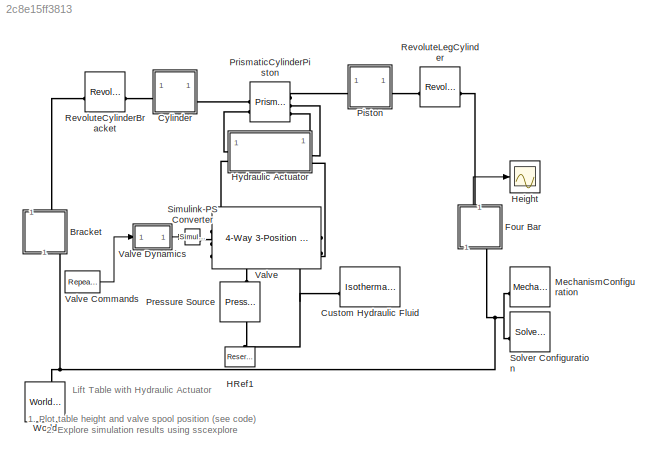
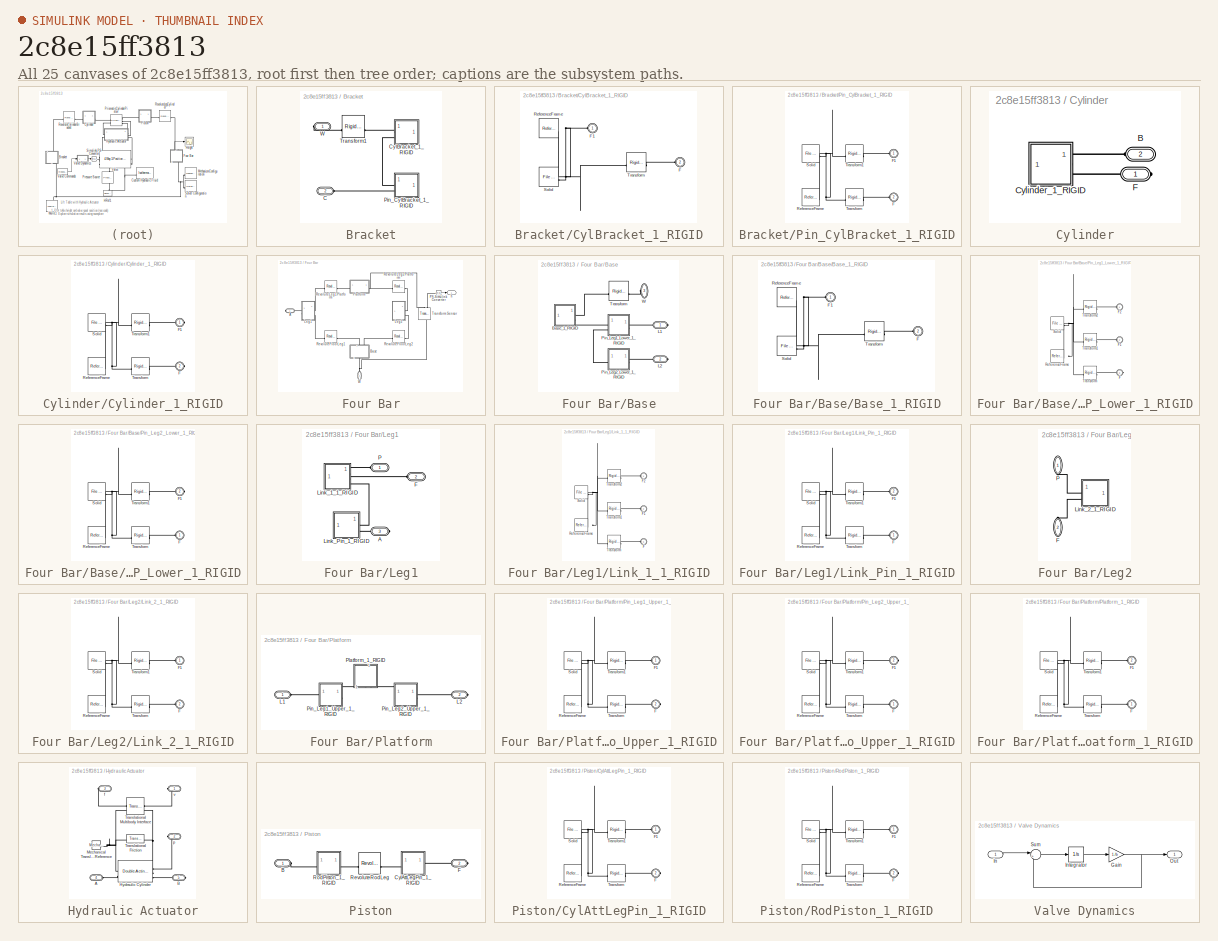
[diagram: thumbnail index - all 25 canvases of the model, root first then tree order]
MODEL slx_2c8e15ff3813
KIND model
CONFIG AbsTol = 1e-3
CONFIG PostLoadFcn = pst_rOut = 15;\nrod_rOut = 5;\nstroke = 0.7;
CONFIG SolverName = VariableStepAuto
CONFIG StopTime = 30
WORKSPACE source: external: MATLAB File  (data not in archive)
BLOCK [SubSystem] Bracket
  NameLocation = right
BLOCK [PMIOPort] Bracket/C
  Port = 2
  Side = Left
BLOCK [SubSystem] Bracket/CylBracket_1_RIGID
BLOCK [PMIOPort] Bracket/CylBracket_1_RIGID/F
  Port = 2
  Side = Left
BLOCK [PMIOPort] Bracket/CylBracket_1_RIGID/F1
  Side = Left
BLOCK [Reference] Bracket/CylBracket_1_RIGID/ReferenceFrame  REF=sm_lib/Frames and
Transforms/Reference
Frame
  SourceBlock = sm_lib/Frames and\nTransforms/Reference\nFrame
  SourceType = Reference\nFrame
BLOCK [Reference] Bracket/CylBracket_1_RIGID/Solid  REF=sm_lib/Body Elements/File Solid
  SourceBlock = sm_lib/Body Elements/File Solid
  SourceType = File Solid
BLOCK [Reference] Bracket/CylBracket_1_RIGID/Transform  REF=sm_lib/Frames and
Transforms/Rigid
Transform
  SourceBlock = sm_lib/Frames and\nTransforms/Rigid\nTransform
  SourceType = Rigid\nTransform
BLOCK [SubSystem] Bracket/Pin_CylBracket_1_RIGID
BLOCK [PMIOPort] Bracket/Pin_CylBracket_1_RIGID/F
  Port = 2
  Side = Left
BLOCK [PMIOPort] Bracket/Pin_CylBracket_1_RIGID/F1
  Side = Left
BLOCK [Reference] Bracket/Pin_CylBracket_1_RIGID/ReferenceFrame  REF=sm_lib/Frames and
Transforms/Reference
Frame
  SourceBlock = sm_lib/Frames and\nTransforms/Reference\nFrame
  SourceType = Reference\nFrame
BLOCK [Reference] Bracket/Pin_CylBracket_1_RIGID/Solid  REF=sm_lib/Body Elements/File Solid
  SourceBlock = sm_lib/Body Elements/File Solid
  SourceType = File Solid
BLOCK [Reference] Bracket/Pin_CylBracket_1_RIGID/Transform  REF=sm_lib/Frames and
Transforms/Rigid
Transform
  SourceBlock = sm_lib/Frames and\nTransforms/Rigid\nTransform
  SourceType = Rigid\nTransform
BLOCK [Reference] Bracket/Pin_CylBracket_1_RIGID/Transform1  REF=sm_lib/Frames and
Transforms/Rigid
Transform
  SourceBlock = sm_lib/Frames and\nTransforms/Rigid\nTransform
  SourceType = Rigid\nTransform
BLOCK [Reference] Bracket/Transform1  REF=sm_lib/Frames and
Transforms/Rigid
Transform
  NameLocation = top
  SourceBlock = sm_lib/Frames and\nTransforms/Rigid\nTransform
  SourceType = Rigid\nTransform
BLOCK [PMIOPort] Bracket/W
  NameLocation = top
  Side = Right
BLOCK [Reference] Custom Hydraulic Fluid  REF=fl_lib/Isothermal Liquid/Utilities/Isothermal Liquid
Properties (IL)
  LibrarySourceBlock = fl_lib/Hydraulic/Hydraulic Utilities/Custom Hydraulic\nFluid
  SourceBlock = fl_lib/Isothermal Liquid/Utilities/Isothermal Liquid\nProperties (IL)
  SourceType = Isothermal Liquid\nProperties (IL)
BLOCK [SubSystem] Cylinder
BLOCK [PMIOPort] Cylinder/B
  NameLocation = top
  Port = 2
  Side = Left
BLOCK [SubSystem] Cylinder/Cylinder_1_RIGID
BLOCK [PMIOPort] Cylinder/Cylinder_1_RIGID/F
  Port = 2
  Side = Right
BLOCK [PMIOPort] Cylinder/Cylinder_1_RIGID/F1
  Side = Right
BLOCK [Reference] Cylinder/Cylinder_1_RIGID/ReferenceFrame  REF=sm_lib/Frames and
Transforms/Reference
Frame
  SourceBlock = sm_lib/Frames and\nTransforms/Reference\nFrame
  SourceType = Reference\nFrame
BLOCK [Reference] Cylinder/Cylinder_1_RIGID/Solid  REF=sm_lib/Body Elements/File Solid
  SourceBlock = sm_lib/Body Elements/File Solid
  SourceType = File Solid
BLOCK [Reference] Cylinder/Cylinder_1_RIGID/Transform  REF=sm_lib/Frames and
Transforms/Rigid
Transform
  SourceBlock = sm_lib/Frames and\nTransforms/Rigid\nTransform
  SourceType = Rigid\nTransform
BLOCK [Reference] Cylinder/Cylinder_1_RIGID/Transform1  REF=sm_lib/Frames and
Transforms/Rigid
Transform
  SourceBlock = sm_lib/Frames and\nTransforms/Rigid\nTransform
  SourceType = Rigid\nTransform
BLOCK [PMIOPort] Cylinder/F
  Side = Right
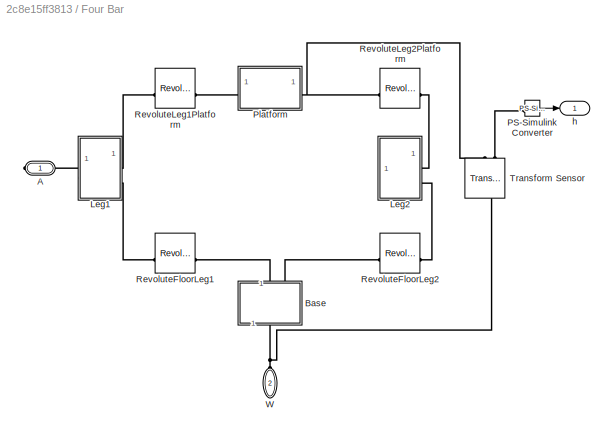
BLOCK [SubSystem] Four Bar
  NameLocation = left
BLOCK [PMIOPort] Four Bar/A
  Side = Right
BLOCK [SubSystem] Four Bar/Base
  NameLocation = right
BLOCK [SubSystem] Four Bar/Base/Base_1_RIGID
BLOCK [PMIOPort] Four Bar/Base/Base_1_RIGID/F
  Port = 2
  Side = Left
BLOCK [PMIOPort] Four Bar/Base/Base_1_RIGID/F1
  Side = Left
BLOCK [Reference] Four Bar/Base/Base_1_RIGID/ReferenceFrame  REF=sm_lib/Frames and
Transforms/Reference
Frame
  SourceBlock = sm_lib/Frames and\nTransforms/Reference\nFrame
  SourceType = Reference\nFrame
BLOCK [Reference] Four Bar/Base/Base_1_RIGID/Solid  REF=sm_lib/Body Elements/File Solid
  SourceBlock = sm_lib/Body Elements/File Solid
  SourceType = File Solid
BLOCK [Reference] Four Bar/Base/Base_1_RIGID/Transform  REF=sm_lib/Frames and
Transforms/Rigid
Transform
  SourceBlock = sm_lib/Frames and\nTransforms/Rigid\nTransform
  SourceType = Rigid\nTransform
BLOCK [PMIOPort] Four Bar/Base/L1
  Side = Right
BLOCK [PMIOPort] Four Bar/Base/L2
  Port = 2
  Side = Right
BLOCK [SubSystem] Four Bar/Base/Pin_Leg1_Lower_1_RIGID
BLOCK [PMIOPort] Four Bar/Base/Pin_Leg1_Lower_1_RIGID/F
  Port = 3
  Side = Right
BLOCK [PMIOPort] Four Bar/Base/Pin_Leg1_Lower_1_RIGID/F1
  Port = 2
  Side = Left
BLOCK [PMIOPort] Four Bar/Base/Pin_Leg1_Lower_1_RIGID/F2
  Side = Left
BLOCK [Reference] Four Bar/Base/Pin_Leg1_Lower_1_RIGID/ReferenceFrame  REF=sm_lib/Frames and
Transforms/Reference
Frame
  SourceBlock = sm_lib/Frames and\nTransforms/Reference\nFrame
  SourceType = Reference\nFrame
BLOCK [Reference] Four Bar/Base/Pin_Leg1_Lower_1_RIGID/Solid  REF=sm_lib/Body Elements/File Solid
  SourceBlock = sm_lib/Body Elements/File Solid
  SourceType = File Solid
BLOCK [Reference] Four Bar/Base/Pin_Leg1_Lower_1_RIGID/Transform  REF=sm_lib/Frames and
Transforms/Rigid
Transform
  SourceBlock = sm_lib/Frames and\nTransforms/Rigid\nTransform
  SourceType = Rigid\nTransform
BLOCK [Reference] Four Bar/Base/Pin_Leg1_Lower_1_RIGID/Transform1  REF=sm_lib/Frames and
Transforms/Rigid
Transform
  SourceBlock = sm_lib/Frames and\nTransforms/Rigid\nTransform
  SourceType = Rigid\nTransform
BLOCK [Reference] Four Bar/Base/Pin_Leg1_Lower_1_RIGID/Transform2  REF=sm_lib/Frames and
Transforms/Rigid
Transform
  SourceBlock = sm_lib/Frames and\nTransforms/Rigid\nTransform
  SourceType = Rigid\nTransform
BLOCK [SubSystem] Four Bar/Base/Pin_Leg2_Lower_1_RIGID
BLOCK [PMIOPort] Four Bar/Base/Pin_Leg2_Lower_1_RIGID/F
  Side = Left
BLOCK [PMIOPort] Four Bar/Base/Pin_Leg2_Lower_1_RIGID/F1
  Port = 2
  Side = Right
BLOCK [Reference] Four Bar/Base/Pin_Leg2_Lower_1_RIGID/ReferenceFrame  REF=sm_lib/Frames and
Transforms/Reference
Frame
  SourceBlock = sm_lib/Frames and\nTransforms/Reference\nFrame
  SourceType = Reference\nFrame
BLOCK [Reference] Four Bar/Base/Pin_Leg2_Lower_1_RIGID/Solid  REF=sm_lib/Body Elements/File Solid
  SourceBlock = sm_lib/Body Elements/File Solid
  SourceType = File Solid
BLOCK [Reference] Four Bar/Base/Pin_Leg2_Lower_1_RIGID/Transform  REF=sm_lib/Frames and
Transforms/Rigid
Transform
  SourceBlock = sm_lib/Frames and\nTransforms/Rigid\nTransform
  SourceType = Rigid\nTransform
BLOCK [Reference] Four Bar/Base/Pin_Leg2_Lower_1_RIGID/Transform1  REF=sm_lib/Frames and
Transforms/Rigid
Transform
  SourceBlock = sm_lib/Frames and\nTransforms/Rigid\nTransform
  SourceType = Rigid\nTransform
BLOCK [Reference] Four Bar/Base/Transform  REF=sm_lib/Frames and
Transforms/Rigid
Transform
  SourceBlock = sm_lib/Frames and\nTransforms/Rigid\nTransform
  SourceType = Rigid\nTransform
BLOCK [PMIOPort] Four Bar/Base/W
  NameLocation = top
  Port = 3
  Side = Left
BLOCK [SubSystem] Four Bar/Leg1
BLOCK [PMIOPort] Four Bar/Leg1/A
  Port = 3
  Side = Right
BLOCK [PMIOPort] Four Bar/Leg1/F
  NameLocation = top
  Port = 2
  Side = Left
BLOCK [SubSystem] Four Bar/Leg1/Link_1_1_RIGID
BLOCK [PMIOPort] Four Bar/Leg1/Link_1_1_RIGID/F
  Port = 3
  Side = Left
BLOCK [PMIOPort] Four Bar/Leg1/Link_1_1_RIGID/F1
  Port = 2
  Side = Left
BLOCK [PMIOPort] Four Bar/Leg1/Link_1_1_RIGID/F2
  Side = Left
BLOCK [Reference] Four Bar/Leg1/Link_1_1_RIGID/ReferenceFrame  REF=sm_lib/Frames and
Transforms/Reference
Frame
  SourceBlock = sm_lib/Frames and\nTransforms/Reference\nFrame
  SourceType = Reference\nFrame
BLOCK [Reference] Four Bar/Leg1/Link_1_1_RIGID/Solid  REF=sm_lib/Body Elements/File Solid
  SourceBlock = sm_lib/Body Elements/File Solid
  SourceType = File Solid
BLOCK [Reference] Four Bar/Leg1/Link_1_1_RIGID/Transform  REF=sm_lib/Frames and
Transforms/Rigid
Transform
  SourceBlock = sm_lib/Frames and\nTransforms/Rigid\nTransform
  SourceType = Rigid\nTransform
BLOCK [Reference] Four Bar/Leg1/Link_1_1_RIGID/Transform1  REF=sm_lib/Frames and
Transforms/Rigid
Transform
  SourceBlock = sm_lib/Frames and\nTransforms/Rigid\nTransform
  SourceType = Rigid\nTransform
BLOCK [Reference] Four Bar/Leg1/Link_1_1_RIGID/Transform2  REF=sm_lib/Frames and
Transforms/Rigid
Transform
  SourceBlock = sm_lib/Frames and\nTransforms/Rigid\nTransform
  SourceType = Rigid\nTransform
BLOCK [SubSystem] Four Bar/Leg1/Link_Pin_1_RIGID
  NameLocation = top
BLOCK [PMIOPort] Four Bar/Leg1/Link_Pin_1_RIGID/F
  Side = Left
BLOCK [PMIOPort] Four Bar/Leg1/Link_Pin_1_RIGID/F1
  Port = 2
  Side = Left
BLOCK [Reference] Four Bar/Leg1/Link_Pin_1_RIGID/ReferenceFrame  REF=sm_lib/Frames and
Transforms/Reference
Frame
  SourceBlock = sm_lib/Frames and\nTransforms/Reference\nFrame
  SourceType = Reference\nFrame
BLOCK [Reference] Four Bar/Leg1/Link_Pin_1_RIGID/Solid  REF=sm_lib/Body Elements/File Solid
  SourceBlock = sm_lib/Body Elements/File Solid
  SourceType = File Solid
BLOCK [Reference] Four Bar/Leg1/Link_Pin_1_RIGID/Transform  REF=sm_lib/Frames and
Transforms/Rigid
Transform
  SourceBlock = sm_lib/Frames and\nTransforms/Rigid\nTransform
  SourceType = Rigid\nTransform
BLOCK [Reference] Four Bar/Leg1/Link_Pin_1_RIGID/Transform1  REF=sm_lib/Frames and
Transforms/Rigid
Transform
  SourceBlock = sm_lib/Frames and\nTransforms/Rigid\nTransform
  SourceType = Rigid\nTransform
BLOCK [PMIOPort] Four Bar/Leg1/P
  NameLocation = top
  Side = Left
BLOCK [SubSystem] Four Bar/Leg2
BLOCK [PMIOPort] Four Bar/Leg2/F
  NameLocation = right
  Port = 2
  Side = Left
BLOCK [SubSystem] Four Bar/Leg2/Link_2_1_RIGID
BLOCK [PMIOPort] Four Bar/Leg2/Link_2_1_RIGID/F
  Port = 2
  Side = Left
BLOCK [PMIOPort] Four Bar/Leg2/Link_2_1_RIGID/F1
  Side = Left
BLOCK [Reference] Four Bar/Leg2/Link_2_1_RIGID/ReferenceFrame  REF=sm_lib/Frames and
Transforms/Reference
Frame
  SourceBlock = sm_lib/Frames and\nTransforms/Reference\nFrame
  SourceType = Reference\nFrame
BLOCK [Reference] Four Bar/Leg2/Link_2_1_RIGID/Solid  REF=sm_lib/Body Elements/File Solid
  SourceBlock = sm_lib/Body Elements/File Solid
  SourceType = File Solid
BLOCK [Reference] Four Bar/Leg2/Link_2_1_RIGID/Transform  REF=sm_lib/Frames and
Transforms/Rigid
Transform
  SourceBlock = sm_lib/Frames and\nTransforms/Rigid\nTransform
  SourceType = Rigid\nTransform
BLOCK [Reference] Four Bar/Leg2/Link_2_1_RIGID/Transform1  REF=sm_lib/Frames and
Transforms/Rigid
Transform
  SourceBlock = sm_lib/Frames and\nTransforms/Rigid\nTransform
  SourceType = Rigid\nTransform
BLOCK [PMIOPort] Four Bar/Leg2/P
  NameLocation = right
  Side = Left
BLOCK [Reference] Four Bar/PS-Simulink Converter  REF=nesl_utility/PS-Simulink
Converter
  NameLocation = top
  SourceBlock = nesl_utility/PS-Simulink\nConverter
  SourceType = PS-Simulink\nConverter
BLOCK [SubSystem] Four Bar/Platform
BLOCK [PMIOPort] Four Bar/Platform/L1
  Side = Left
BLOCK [PMIOPort] Four Bar/Platform/L2
  Port = 2
  Side = Right
BLOCK [SubSystem] Four Bar/Platform/Pin_Leg1_Upper_1_RIGID
BLOCK [PMIOPort] Four Bar/Platform/Pin_Leg1_Upper_1_RIGID/F
  Port = 2
  Side = Right
BLOCK [PMIOPort] Four Bar/Platform/Pin_Leg1_Upper_1_RIGID/F1
  Side = Left
BLOCK [Reference] Four Bar/Platform/Pin_Leg1_Upper_1_RIGID/ReferenceFrame  REF=sm_lib/Frames and
Transforms/Reference
Frame
  SourceBlock = sm_lib/Frames and\nTransforms/Reference\nFrame
  SourceType = Reference\nFrame
BLOCK [Reference] Four Bar/Platform/Pin_Leg1_Upper_1_RIGID/Solid  REF=sm_lib/Body Elements/File Solid
  SourceBlock = sm_lib/Body Elements/File Solid
  SourceType = File Solid
BLOCK [Reference] Four Bar/Platform/Pin_Leg1_Upper_1_RIGID/Transform  REF=sm_lib/Frames and
Transforms/Rigid
Transform
  SourceBlock = sm_lib/Frames and\nTransforms/Rigid\nTransform
  SourceType = Rigid\nTransform
BLOCK [Reference] Four Bar/Platform/Pin_Leg1_Upper_1_RIGID/Transform1  REF=sm_lib/Frames and
Transforms/Rigid
Transform
  SourceBlock = sm_lib/Frames and\nTransforms/Rigid\nTransform
  SourceType = Rigid\nTransform
BLOCK [SubSystem] Four Bar/Platform/Pin_Leg2_Upper_1_RIGID
BLOCK [PMIOPort] Four Bar/Platform/Pin_Leg2_Upper_1_RIGID/F
  Side = Left
BLOCK [PMIOPort] Four Bar/Platform/Pin_Leg2_Upper_1_RIGID/F1
  Port = 2
  Side = Right
BLOCK [Reference] Four Bar/Platform/Pin_Leg2_Upper_1_RIGID/ReferenceFrame  REF=sm_lib/Frames and
Transforms/Reference
Frame
  SourceBlock = sm_lib/Frames and\nTransforms/Reference\nFrame
  SourceType = Reference\nFrame
BLOCK [Reference] Four Bar/Platform/Pin_Leg2_Upper_1_RIGID/Solid  REF=sm_lib/Body Elements/File Solid
  SourceBlock = sm_lib/Body Elements/File Solid
  SourceType = File Solid
BLOCK [Reference] Four Bar/Platform/Pin_Leg2_Upper_1_RIGID/Transform  REF=sm_lib/Frames and
Transforms/Rigid
Transform
  SourceBlock = sm_lib/Frames and\nTransforms/Rigid\nTransform
  SourceType = Rigid\nTransform
BLOCK [Reference] Four Bar/Platform/Pin_Leg2_Upper_1_RIGID/Transform1  REF=sm_lib/Frames and
Transforms/Rigid
Transform
  SourceBlock = sm_lib/Frames and\nTransforms/Rigid\nTransform
  SourceType = Rigid\nTransform
BLOCK [SubSystem] Four Bar/Platform/Platform_1_RIGID
  NameLocation = right
BLOCK [PMIOPort] Four Bar/Platform/Platform_1_RIGID/F
  Side = Left
BLOCK [PMIOPort] Four Bar/Platform/Platform_1_RIGID/F1
  Port = 2
  Side = Left
BLOCK [Reference] Four Bar/Platform/Platform_1_RIGID/ReferenceFrame  REF=sm_lib/Frames and
Transforms/Reference
Frame
  SourceBlock = sm_lib/Frames and\nTransforms/Reference\nFrame
  SourceType = Reference\nFrame
BLOCK [Reference] Four Bar/Platform/Platform_1_RIGID/Solid  REF=sm_lib/Body Elements/File Solid
  SourceBlock = sm_lib/Body Elements/File Solid
  SourceType = File Solid
BLOCK [Reference] Four Bar/Platform/Platform_1_RIGID/Transform  REF=sm_lib/Frames and
Transforms/Rigid
Transform
  SourceBlock = sm_lib/Frames and\nTransforms/Rigid\nTransform
  SourceType = Rigid\nTransform
BLOCK [Reference] Four Bar/Platform/Platform_1_RIGID/Transform1  REF=sm_lib/Frames and
Transforms/Rigid
Transform
  SourceBlock = sm_lib/Frames and\nTransforms/Rigid\nTransform
  SourceType = Rigid\nTransform
BLOCK [Reference] Four Bar/RevoluteFloorLeg1  REF=sm_lib/Joints/Revolute Joint
  SourceBlock = sm_lib/Joints/Revolute Joint
  SourceType = Revolute Joint
BLOCK [Reference] Four Bar/RevoluteFloorLeg2  REF=sm_lib/Joints/Revolute Joint
  SourceBlock = sm_lib/Joints/Revolute Joint
  SourceType = Revolute Joint
BLOCK [Reference] Four Bar/RevoluteLeg1Platform  REF=sm_lib/Joints/Revolute Joint
  NameLocation = top
  SourceBlock = sm_lib/Joints/Revolute Joint
  SourceType = Revolute Joint
BLOCK [Reference] Four Bar/RevoluteLeg2Platform  REF=sm_lib/Joints/Revolute Joint
  NameLocation = top
  SourceBlock = sm_lib/Joints/Revolute Joint
  SourceType = Revolute Joint
BLOCK [Reference] Four Bar/Transform Sensor  REF=sm_lib/Frames and
Transforms/Transform
Sensor
  NameLocation = right
  SourceBlock = sm_lib/Frames and\nTransforms/Transform\nSensor
  SourceType = Transform\nSensor
BLOCK [PMIOPort] Four Bar/W
  NameLocation = right
  Port = 2
  Side = Left
BLOCK [Outport] Four Bar/h
  VectorParamsAs1DForOutWhenUnconnected = off
BLOCK [Reference] HRef1  REF=fl_lib/Isothermal Liquid/Elements/Reservoir (IL)
  LibrarySourceBlock = fl_lib/Hydraulic/Hydraulic Elements/Hydraulic Reference
  NameLocation = right
  SourceBlock = fl_lib/Isothermal Liquid/Elements/Reservoir (IL)
  SourceType = Reservoir (IL)
  Tag = Factory Generic
BLOCK [Scope] Height
  ActiveDisplayYMaximum = 1.118
  ActiveDisplayYMinimum = -0.06196
  DataLoggingDecimateData = on
  DataLoggingDecimation = 1
  DataLoggingSaveFormat = Array
  Floating = off
  GraphicalSettings = {"GraphicalSettings":{"LegacySettings":true,"Style":{"Style":{"AxesColor":"[0 0 0]","ChannelNames":[""],"ColorOrder":"[1 1 0.0666666666666667;0.0745098039215686 0.623529411764706 1;1 0.411764705882353 0.16078431372549;0.392156862745098 0.831372549019608 0.0745098039215686;0.717647058823529 0.274509803921569 1;0.0588235294117647 1 1;1 0.0745098039215686 0.650980392156863]","CurrentConfiguration":"e...<+343ch>
  MultipleDisplayCache = [{"MaxYLimMag":1.118,"MaxYLimReal":1.118,"MinYLimMag":0,"MinYLimReal":-0.06196,"PlotAsMagnitudePhase":false,"ShowGrid":true,"ShowLegend":false,"Title":"%<SignalLabel>","YLabel":""}]
  NumInputPorts = 1
  WasSavedAsWebScope = on
  WindowPosition = [668 358 560 420]
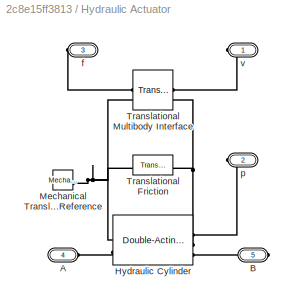
BLOCK [SubSystem] Hydraulic Actuator
BLOCK [PMIOPort] Hydraulic Actuator/A
  Port = 4
  Side = Left
BLOCK [PMIOPort] Hydraulic Actuator/B
  Port = 5
  Side = Right
BLOCK [Reference] Hydraulic Actuator/Hydraulic Cylinder  REF=SimscapeFluids_lib/Isothermal Liquid/Actuators/Double-Acting
Actuator (IL)
  LibrarySourceBlock = sh_lib/Hydraulic Cylinders/Double-Acting\nHydraulic Cylinder
  SourceBlock = SimscapeFluids_lib/Isothermal Liquid/Actuators/Double-Acting\nActuator (IL)
  SourceType = Double-Acting\nActuator (IL)
BLOCK [Reference] Hydraulic Actuator/Mechanical Translational Reference  REF=fl_lib/Mechanical/Translational
Elements/Mechanical
Translational
Reference
  SourceBlock = fl_lib/Mechanical/Translational\nElements/Mechanical\nTranslational\nReference
  SourceType = Mechanical\nTranslational\nReference
BLOCK [Reference] Hydraulic Actuator/Translational Friction  REF=fl_lib/Mechanical/Translational
Elements/Translational
Friction
  SourceBlock = fl_lib/Mechanical/Translational\nElements/Translational\nFriction
  SourceType = Translational\nFriction
BLOCK [Reference] Hydraulic Actuator/Translational Multibody Interface  REF=fl_lib/Mechanical/Multibody Interfaces/Translational
Multibody Interface
  SourceBlock = fl_lib/Mechanical/Multibody Interfaces/Translational\nMultibody Interface
  SourceType = Translational\nMultibody Interface
BLOCK [PMIOPort] Hydraulic Actuator/f
  Port = 3
  Side = Left
BLOCK [PMIOPort] Hydraulic Actuator/p
  Port = 2
  Side = Right
BLOCK [PMIOPort] Hydraulic Actuator/v
  Side = Right
BLOCK [Reference] MechanismConfiguration  REF=sm_lib/Utilities/Mechanism
Configuration
  SourceBlock = sm_lib/Utilities/Mechanism\nConfiguration
  SourceType = Mechanism\nConfiguration
BLOCK [SubSystem] Piston
BLOCK [PMIOPort] Piston/B
  Side = Left
BLOCK [SubSystem] Piston/CylAttLegPin_1_RIGID
BLOCK [PMIOPort] Piston/CylAttLegPin_1_RIGID/F
  Port = 2
  Side = Right
BLOCK [PMIOPort] Piston/CylAttLegPin_1_RIGID/F1
  Side = Left
BLOCK [Reference] Piston/CylAttLegPin_1_RIGID/ReferenceFrame  REF=sm_lib/Frames and
Transforms/Reference
Frame
  SourceBlock = sm_lib/Frames and\nTransforms/Reference\nFrame
  SourceType = Reference\nFrame
BLOCK [Reference] Piston/CylAttLegPin_1_RIGID/Solid  REF=sm_lib/Body Elements/File Solid
  SourceBlock = sm_lib/Body Elements/File Solid
  SourceType = File Solid
BLOCK [Reference] Piston/CylAttLegPin_1_RIGID/Transform  REF=sm_lib/Frames and
Transforms/Rigid
Transform
  SourceBlock = sm_lib/Frames and\nTransforms/Rigid\nTransform
  SourceType = Rigid\nTransform
BLOCK [Reference] Piston/CylAttLegPin_1_RIGID/Transform1  REF=sm_lib/Frames and
Transforms/Rigid
Transform
  SourceBlock = sm_lib/Frames and\nTransforms/Rigid\nTransform
  SourceType = Rigid\nTransform
BLOCK [PMIOPort] Piston/F
  Port = 2
  Side = Right
BLOCK [Reference] Piston/RevoluteRodLeg  REF=sm_lib/Joints/Revolute Joint
  NameLocation = top
  SourceBlock = sm_lib/Joints/Revolute Joint
  SourceType = Revolute Joint
BLOCK [SubSystem] Piston/RodPiston_1_RIGID
BLOCK [PMIOPort] Piston/RodPiston_1_RIGID/F
  Port = 2
  Side = Right
BLOCK [PMIOPort] Piston/RodPiston_1_RIGID/F1
  Side = Left
BLOCK [Reference] Piston/RodPiston_1_RIGID/ReferenceFrame  REF=sm_lib/Frames and
Transforms/Reference
Frame
  SourceBlock = sm_lib/Frames and\nTransforms/Reference\nFrame
  SourceType = Reference\nFrame
BLOCK [Reference] Piston/RodPiston_1_RIGID/Solid  REF=sm_lib/Body Elements/File Solid
  SourceBlock = sm_lib/Body Elements/File Solid
  SourceType = File Solid
BLOCK [Reference] Piston/RodPiston_1_RIGID/Transform  REF=sm_lib/Frames and
Transforms/Rigid
Transform
  SourceBlock = sm_lib/Frames and\nTransforms/Rigid\nTransform
  SourceType = Rigid\nTransform
BLOCK [Reference] Piston/RodPiston_1_RIGID/Transform1  REF=sm_lib/Frames and
Transforms/Rigid
Transform
  SourceBlock = sm_lib/Frames and\nTransforms/Rigid\nTransform
  SourceType = Rigid\nTransform
BLOCK [Reference] Pressure Source  REF=fl_lib/Isothermal Liquid/Sources/Pressure Source (IL)
  LibrarySourceBlock = fl_lib/Hydraulic/Hydraulic Sources/Hydraulic Constant\nPressure Source
  NameLocation = left
  SourceBlock = fl_lib/Isothermal Liquid/Sources/Pressure Source (IL)
  SourceType = Pressure Source (IL)
BLOCK [Reference] PrismaticCylinderPiston  REF=sm_lib/Joints/Prismatic
Joint
  NameLocation = top
  SourceBlock = sm_lib/Joints/Prismatic\nJoint
  SourceType = Prismatic\nJoint
BLOCK [Reference] RevoluteCylinderBracket  REF=sm_lib/Joints/Revolute Joint
  NameLocation = top
  SourceBlock = sm_lib/Joints/Revolute Joint
  SourceType = Revolute Joint
BLOCK [Reference] RevoluteLegCylinder  REF=sm_lib/Joints/Revolute Joint
  NameLocation = top
  SourceBlock = sm_lib/Joints/Revolute Joint
  SourceType = Revolute Joint
BLOCK [Reference] Simulink-PS Converter  REF=nesl_utility/Simulink-PS
Converter
  SourceBlock = nesl_utility/Simulink-PS\nConverter
  SourceType = Simulink-PS\nConverter
BLOCK [Reference] Solver Configuration  REF=nesl_utility/Solver
Configuration
  SourceBlock = nesl_utility/Solver\nConfiguration
  SourceType = Solver\nConfiguration
BLOCK [Reference] Valve  REF=SimscapeFluids_lib/Isothermal Liquid/Valves & Orifices/Directional Control
Valves/4-Way 3-Position
Directional Valve
(IL)
  LibrarySourceBlock = sh_lib/Valves/Directional Valves/4-Way Directional\nValve
  SourceBlock = SimscapeFluids_lib/Isothermal Liquid/Valves & Orifices/Directional Control\nValves/4-Way 3-Position\nDirectional Valve\n(IL)
  SourceType = 4-Way 3-Position\nDirectional Valve\n(IL)
BLOCK [Reference] Valve Commands  REF=simulink/Sources/Repeating
Sequence
Stair
  SourceBlock = simulink/Sources/Repeating\nSequence\nStair
  SourceType = Repeating Sequence Stair
BLOCK [SubSystem] Valve Dynamics
BLOCK [Gain] Valve Dynamics/Gain
  Gain = 1./b
BLOCK [Inport] Valve Dynamics/In
BLOCK [Integrator] Valve Dynamics/Integrator
  InitialCondition = x_initial.*b
BLOCK [Outport] Valve Dynamics/Out
  VectorParamsAs1DForOutWhenUnconnected = off
BLOCK [Sum] Valve Dynamics/Sum
  InputSameDT = on
  Inputs = |+-
  OutDataTypeStr = Inherit: Same as first input
  SaturateOnIntegerOverflow = on
BLOCK [Reference] World  REF=sm_lib/Frames and
Transforms/World Frame
  NameLocation = right
  SourceBlock = sm_lib/Frames and\nTransforms/World Frame
  SourceType = World Frame
ANNOTATION (root): 1. Plot table height and valve spool position ( see code ) 2. Explore simulation results using sscexplore
ANNOTATION (root): Lift Table with Hydraulic Actuator
LINE Four Bar/PS-Simulink Converter:1 -> Four Bar/h:1
LINE Four Bar:1 -> Height:1
LINE Valve Commands:1 -> Valve Dynamics:1
NET Valve Dynamics/Gain:1 -> Valve Dynamics/Out:1, Valve Dynamics/Sum:2
LINE Valve Dynamics/In:1 -> Valve Dynamics/Sum:1
LINE Valve Dynamics/Integrator:1 -> Valve Dynamics/Gain:1
LINE Valve Dynamics/Sum:1 -> Valve Dynamics/Integrator:1
LINE Valve Dynamics:1 -> Simulink-PS Converter:1
PLINE Bracket/C:RConn1 -- Bracket/Pin_CylBracket_1_RIGID:LConn2
PNET net1: Bracket/CylBracket_1_RIGID/F1:RConn1 -- Bracket/CylBracket_1_RIGID/ReferenceFrame:RConn1 -- Bracket/CylBracket_1_RIGID/Solid:RConn1 -- Bracket/CylBracket_1_RIGID/Transform:LConn1
PLINE Bracket/CylBracket_1_RIGID/F:RConn1 -- Bracket/CylBracket_1_RIGID/Transform:RConn1
PLINE Bracket/CylBracket_1_RIGID:LConn1 -- Bracket/Transform1:RConn1
PLINE Bracket/CylBracket_1_RIGID:LConn2 -- Bracket/Pin_CylBracket_1_RIGID:LConn1
PLINE Bracket/Pin_CylBracket_1_RIGID/F1:RConn1 -- Bracket/Pin_CylBracket_1_RIGID/Transform1:RConn1
PLINE Bracket/Pin_CylBracket_1_RIGID/F:RConn1 -- Bracket/Pin_CylBracket_1_RIGID/Transform:RConn1
PNET net2: Bracket/Pin_CylBracket_1_RIGID/ReferenceFrame:RConn1 -- Bracket/Pin_CylBracket_1_RIGID/Solid:RConn1 -- Bracket/Pin_CylBracket_1_RIGID/Transform1:LConn1 -- Bracket/Pin_CylBracket_1_RIGID/Transform:LConn1
PLINE Bracket/Transform1:LConn1 -- Bracket/W:RConn1
PLINE Bracket:LConn1 -- RevoluteCylinderBracket:RConn1
PNET net3: Bracket:RConn1 -- Four Bar:LConn1 -- MechanismConfiguration:RConn1 -- Solver Configuration:RConn1 -- World:RConn1
PNET net4: Custom Hydraulic Fluid:RConn1 -- HRef1:LConn1 -- Pressure Source:LConn1 -- Valve:RConn2
PLINE Cylinder/B:RConn1 -- Cylinder/Cylinder_1_RIGID:RConn1
PLINE Cylinder/Cylinder_1_RIGID/F1:RConn1 -- Cylinder/Cylinder_1_RIGID/Transform1:RConn1
PLINE Cylinder/Cylinder_1_RIGID/F:RConn1 -- Cylinder/Cylinder_1_RIGID/Transform:RConn1
PNET net5: Cylinder/Cylinder_1_RIGID/ReferenceFrame:RConn1 -- Cylinder/Cylinder_1_RIGID/Solid:RConn1 -- Cylinder/Cylinder_1_RIGID/Transform1:LConn1 -- Cylinder/Cylinder_1_RIGID/Transform:LConn1
PLINE Cylinder/Cylinder_1_RIGID:RConn2 -- Cylinder/F:RConn1
PLINE Cylinder:LConn1 -- RevoluteCylinderBracket:LConn1
PLINE Cylinder:RConn1 -- PrismaticCylinderPiston:LConn1
PLINE Four Bar/A:RConn1 -- Four Bar/Leg1:RConn1
PNET net6: Four Bar/Base/Base_1_RIGID/F1:RConn1 -- Four Bar/Base/Base_1_RIGID/ReferenceFrame:RConn1 -- Four Bar/Base/Base_1_RIGID/Solid:RConn1 -- Four Bar/Base/Base_1_RIGID/Transform:LConn1
PLINE Four Bar/Base/Base_1_RIGID/F:RConn1 -- Four Bar/Base/Base_1_RIGID/Transform:RConn1
PLINE Four Bar/Base/Base_1_RIGID:LConn1 -- Four Bar/Base/Transform:RConn1
PLINE Four Bar/Base/Base_1_RIGID:LConn2 -- Four Bar/Base/Pin_Leg1_Lower_1_RIGID:LConn1
PLINE Four Bar/Base/L1:RConn1 -- Four Bar/Base/Pin_Leg1_Lower_1_RIGID:RConn1
PLINE Four Bar/Base/L2:RConn1 -- Four Bar/Base/Pin_Leg2_Lower_1_RIGID:RConn1
PLINE Four Bar/Base/Pin_Leg1_Lower_1_RIGID/F1:RConn1 -- Four Bar/Base/Pin_Leg1_Lower_1_RIGID/Transform1:RConn1
PLINE Four Bar/Base/Pin_Leg1_Lower_1_RIGID/F2:RConn1 -- Four Bar/Base/Pin_Leg1_Lower_1_RIGID/Transform2:RConn1
PLINE Four Bar/Base/Pin_Leg1_Lower_1_RIGID/F:RConn1 -- Four Bar/Base/Pin_Leg1_Lower_1_RIGID/Transform:RConn1
PNET net7: Four Bar/Base/Pin_Leg1_Lower_1_RIGID/ReferenceFrame:RConn1 -- Four Bar/Base/Pin_Leg1_Lower_1_RIGID/Solid:RConn1 -- Four Bar/Base/Pin_Leg1_Lower_1_RIGID/Transform1:LConn1 -- Four Bar/Base/Pin_Leg1_Lower_1_RIGID/Transform2:LConn1 -- Four Bar/Base/Pin_Leg1_Lower_1_RIGID/Transform:LConn1
PLINE Four Bar/Base/Pin_Leg1_Lower_1_RIGID:LConn2 -- Four Bar/Base/Pin_Leg2_Lower_1_RIGID:LConn1
PLINE Four Bar/Base/Pin_Leg2_Lower_1_RIGID/F1:RConn1 -- Four Bar/Base/Pin_Leg2_Lower_1_RIGID/Transform1:RConn1
PLINE Four Bar/Base/Pin_Leg2_Lower_1_RIGID/F:RConn1 -- Four Bar/Base/Pin_Leg2_Lower_1_RIGID/Transform:RConn1
PNET net8: Four Bar/Base/Pin_Leg2_Lower_1_RIGID/ReferenceFrame:RConn1 -- Four Bar/Base/Pin_Leg2_Lower_1_RIGID/Solid:RConn1 -- Four Bar/Base/Pin_Leg2_Lower_1_RIGID/Transform1:LConn1 -- Four Bar/Base/Pin_Leg2_Lower_1_RIGID/Transform:LConn1
PLINE Four Bar/Base/Transform:LConn1 -- Four Bar/Base/W:RConn1
PNET net9: Four Bar/Base:LConn1 -- Four Bar/Transform Sensor:LConn1 -- Four Bar/W:RConn1
PLINE Four Bar/Base:RConn1 -- Four Bar/RevoluteFloorLeg1:LConn1
PLINE Four Bar/Base:RConn2 -- Four Bar/RevoluteFloorLeg2:LConn1
PLINE Four Bar/Leg1/A:RConn1 -- Four Bar/Leg1/Link_Pin_1_RIGID:LConn2
PLINE Four Bar/Leg1/F:RConn1 -- Four Bar/Leg1/Link_1_1_RIGID:LConn2
PLINE Four Bar/Leg1/Link_1_1_RIGID/F1:RConn1 -- Four Bar/Leg1/Link_1_1_RIGID/Transform1:RConn1
PLINE Four Bar/Leg1/Link_1_1_RIGID/F2:RConn1 -- Four Bar/Leg1/Link_1_1_RIGID/Transform2:RConn1
PLINE Four Bar/Leg1/Link_1_1_RIGID/F:RConn1 -- Four Bar/Leg1/Link_1_1_RIGID/Transform:RConn1
PNET net10: Four Bar/Leg1/Link_1_1_RIGID/ReferenceFrame:RConn1 -- Four Bar/Leg1/Link_1_1_RIGID/Solid:RConn1 -- Four Bar/Leg1/Link_1_1_RIGID/Transform1:LConn1 -- Four Bar/Leg1/Link_1_1_RIGID/Transform2:LConn1 -- Four Bar/Leg1/Link_1_1_RIGID/Transform:LConn1
PLINE Four Bar/Leg1/Link_1_1_RIGID:LConn1 -- Four Bar/Leg1/P:RConn1
PLINE Four Bar/Leg1/Link_1_1_RIGID:LConn3 -- Four Bar/Leg1/Link_Pin_1_RIGID:LConn1
PLINE Four Bar/Leg1/Link_Pin_1_RIGID/F1:RConn1 -- Four Bar/Leg1/Link_Pin_1_RIGID/Transform1:RConn1
PLINE Four Bar/Leg1/Link_Pin_1_RIGID/F:RConn1 -- Four Bar/Leg1/Link_Pin_1_RIGID/Transform:RConn1
PNET net11: Four Bar/Leg1/Link_Pin_1_RIGID/ReferenceFrame:RConn1 -- Four Bar/Leg1/Link_Pin_1_RIGID/Solid:RConn1 -- Four Bar/Leg1/Link_Pin_1_RIGID/Transform1:LConn1 -- Four Bar/Leg1/Link_Pin_1_RIGID/Transform:LConn1
PLINE Four Bar/Leg1:LConn1 -- Four Bar/RevoluteLeg1Platform:RConn1
PLINE Four Bar/Leg1:LConn2 -- Four Bar/RevoluteFloorLeg1:RConn1
PLINE Four Bar/Leg2/F:RConn1 -- Four Bar/Leg2/Link_2_1_RIGID:LConn2
PLINE Four Bar/Leg2/Link_2_1_RIGID/F1:RConn1 -- Four Bar/Leg2/Link_2_1_RIGID/Transform1:RConn1
PLINE Four Bar/Leg2/Link_2_1_RIGID/F:RConn1 -- Four Bar/Leg2/Link_2_1_RIGID/Transform:RConn1
PNET net12: Four Bar/Leg2/Link_2_1_RIGID/ReferenceFrame:RConn1 -- Four Bar/Leg2/Link_2_1_RIGID/Solid:RConn1 -- Four Bar/Leg2/Link_2_1_RIGID/Transform1:LConn1 -- Four Bar/Leg2/Link_2_1_RIGID/Transform:LConn1
PLINE Four Bar/Leg2/Link_2_1_RIGID:LConn1 -- Four Bar/Leg2/P:RConn1
PLINE Four Bar/Leg2:LConn1 -- Four Bar/RevoluteLeg2Platform:RConn1
PLINE Four Bar/Leg2:LConn2 -- Four Bar/RevoluteFloorLeg2:RConn1
PLINE Four Bar/PS-Simulink Converter:LConn1 -- Four Bar/Transform Sensor:RConn2
PLINE Four Bar/Platform/L1:RConn1 -- Four Bar/Platform/Pin_Leg1_Upper_1_RIGID:RConn1
PLINE Four Bar/Platform/L2:RConn1 -- Four Bar/Platform/Pin_Leg2_Upper_1_RIGID:RConn1
PLINE Four Bar/Platform/Pin_Leg1_Upper_1_RIGID/F1:RConn1 -- Four Bar/Platform/Pin_Leg1_Upper_1_RIGID/Transform1:RConn1
PLINE Four Bar/Platform/Pin_Leg1_Upper_1_RIGID/F:RConn1 -- Four Bar/Platform/Pin_Leg1_Upper_1_RIGID/Transform:RConn1
PNET net13: Four Bar/Platform/Pin_Leg1_Upper_1_RIGID/ReferenceFrame:RConn1 -- Four Bar/Platform/Pin_Leg1_Upper_1_RIGID/Solid:RConn1 -- Four Bar/Platform/Pin_Leg1_Upper_1_RIGID/Transform1:LConn1 -- Four Bar/Platform/Pin_Leg1_Upper_1_RIGID/Transform:LConn1
PLINE Four Bar/Platform/Pin_Leg1_Upper_1_RIGID:LConn1 -- Four Bar/Platform/Platform_1_RIGID:LConn1
PLINE Four Bar/Platform/Pin_Leg2_Upper_1_RIGID/F1:RConn1 -- Four Bar/Platform/Pin_Leg2_Upper_1_RIGID/Transform1:RConn1
PLINE Four Bar/Platform/Pin_Leg2_Upper_1_RIGID/F:RConn1 -- Four Bar/Platform/Pin_Leg2_Upper_1_RIGID/Transform:RConn1
PNET net14: Four Bar/Platform/Pin_Leg2_Upper_1_RIGID/ReferenceFrame:RConn1 -- Four Bar/Platform/Pin_Leg2_Upper_1_RIGID/Solid:RConn1 -- Four Bar/Platform/Pin_Leg2_Upper_1_RIGID/Transform1:LConn1 -- Four Bar/Platform/Pin_Leg2_Upper_1_RIGID/Transform:LConn1
PLINE Four Bar/Platform/Pin_Leg2_Upper_1_RIGID:LConn1 -- Four Bar/Platform/Platform_1_RIGID:LConn2
PLINE Four Bar/Platform/Platform_1_RIGID/F1:RConn1 -- Four Bar/Platform/Platform_1_RIGID/Transform1:RConn1
PLINE Four Bar/Platform/Platform_1_RIGID/F:RConn1 -- Four Bar/Platform/Platform_1_RIGID/Transform:RConn1
PNET net15: Four Bar/Platform/Platform_1_RIGID/ReferenceFrame:RConn1 -- Four Bar/Platform/Platform_1_RIGID/Solid:RConn1 -- Four Bar/Platform/Platform_1_RIGID/Transform1:LConn1 -- Four Bar/Platform/Platform_1_RIGID/Transform:LConn1
PLINE Four Bar/Platform:LConn1 -- Four Bar/RevoluteLeg1Platform:LConn1
PNET net16: Four Bar/Platform:RConn1 -- Four Bar/RevoluteLeg2Platform:LConn1 -- Four Bar/Transform Sensor:RConn1
PLINE Four Bar:RConn1 -- RevoluteLegCylinder:RConn1
PLINE Hydraulic Actuator/A:RConn1 -- Hydraulic Actuator/Hydraulic Cylinder:LConn2
PLINE Hydraulic Actuator/B:RConn1 -- Hydraulic Actuator/Hydraulic Cylinder:RConn3
PNET net17: Hydraulic Actuator/Hydraulic Cylinder:LConn1 -- Hydraulic Actuator/Mechanical Translational Reference:LConn1 -- Hydraulic Actuator/Translational Friction:RConn1 -- Hydraulic Actuator/Translational Multibody Interface:LConn2
PLINE Hydraulic Actuator/Hydraulic Cylinder:RConn1 -- Hydraulic Actuator/p:RConn1
PNET net18: Hydraulic Actuator/Hydraulic Cylinder:RConn2 -- Hydraulic Actuator/Translational Friction:LConn1 -- Hydraulic Actuator/Translational Multibody Interface:RConn2
PLINE Hydraulic Actuator/Translational Multibody Interface:LConn1 -- Hydraulic Actuator/f:RConn1
PLINE Hydraulic Actuator/Translational Multibody Interface:RConn1 -- Hydraulic Actuator/v:RConn1
PLINE Hydraulic Actuator:LConn1 -- PrismaticCylinderPiston:LConn2
PLINE Hydraulic Actuator:LConn2 -- Valve:LConn2
PLINE Hydraulic Actuator:RConn1 -- PrismaticCylinderPiston:RConn3
PLINE Hydraulic Actuator:RConn2 -- PrismaticCylinderPiston:RConn2
PLINE Hydraulic Actuator:RConn3 -- Valve:LConn3
PLINE Piston/B:RConn1 -- Piston/RodPiston_1_RIGID:LConn1
PLINE Piston/CylAttLegPin_1_RIGID/F1:RConn1 -- Piston/CylAttLegPin_1_RIGID/Transform1:RConn1
PLINE Piston/CylAttLegPin_1_RIGID/F:RConn1 -- Piston/CylAttLegPin_1_RIGID/Transform:RConn1
PNET net19: Piston/CylAttLegPin_1_RIGID/ReferenceFrame:RConn1 -- Piston/CylAttLegPin_1_RIGID/Solid:RConn1 -- Piston/CylAttLegPin_1_RIGID/Transform1:LConn1 -- Piston/CylAttLegPin_1_RIGID/Transform:LConn1
PLINE Piston/CylAttLegPin_1_RIGID:LConn1 -- Piston/RevoluteRodLeg:RConn1
PLINE Piston/CylAttLegPin_1_RIGID:RConn1 -- Piston/F:RConn1
PLINE Piston/RevoluteRodLeg:LConn1 -- Piston/RodPiston_1_RIGID:RConn1
PLINE Piston/RodPiston_1_RIGID/F1:RConn1 -- Piston/RodPiston_1_RIGID/Transform1:RConn1
PLINE Piston/RodPiston_1_RIGID/F:RConn1 -- Piston/RodPiston_1_RIGID/Transform:RConn1
PNET net20: Piston/RodPiston_1_RIGID/ReferenceFrame:RConn1 -- Piston/RodPiston_1_RIGID/Solid:RConn1 -- Piston/RodPiston_1_RIGID/Transform1:LConn1 -- Piston/RodPiston_1_RIGID/Transform:LConn1
PLINE Piston:LConn1 -- PrismaticCylinderPiston:RConn1
PLINE Piston:RConn1 -- RevoluteLegCylinder:LConn1
PLINE Pressure Source:RConn1 -- Valve:RConn1
PLINE Simulink-PS Converter:RConn1 -- Valve:LConn1
note: NET lines group one-source signal fan-out (src -> all destinations, sorted); 1:1 wires keep LINE; PNET lines group multi-terminal physical nets as a canonical sorted terminal list (undirected conserving connections); 2-terminal nets keep the pairwise PLINE form
